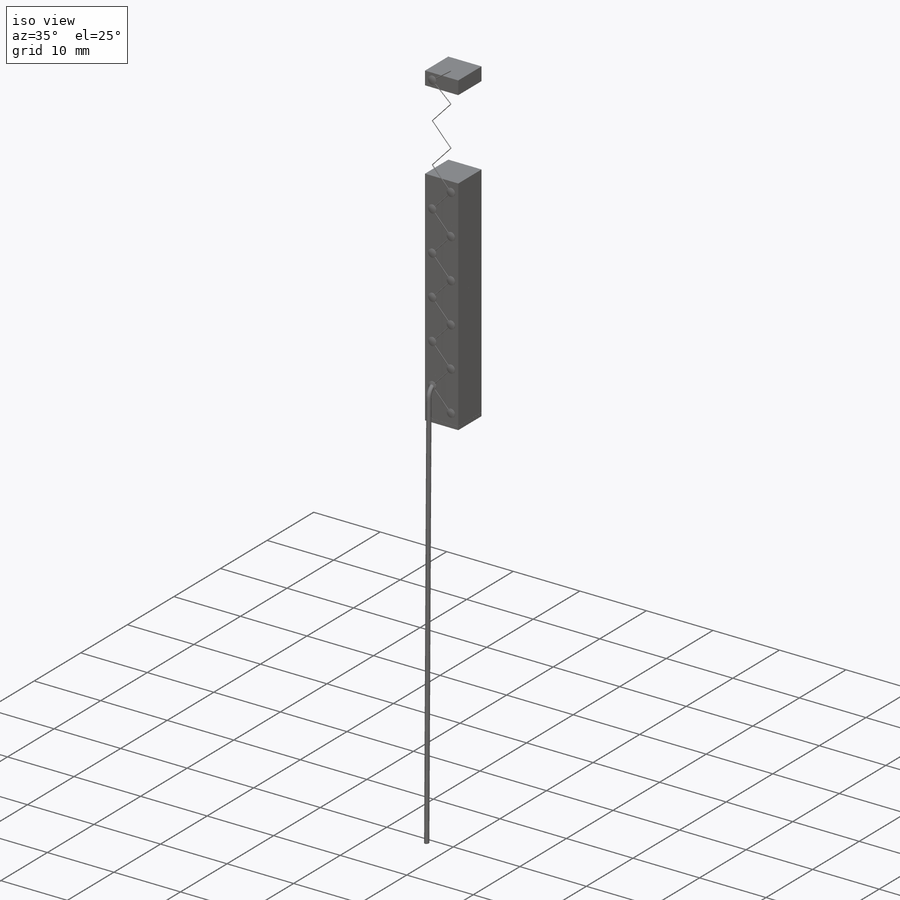
[diagram: iso view]
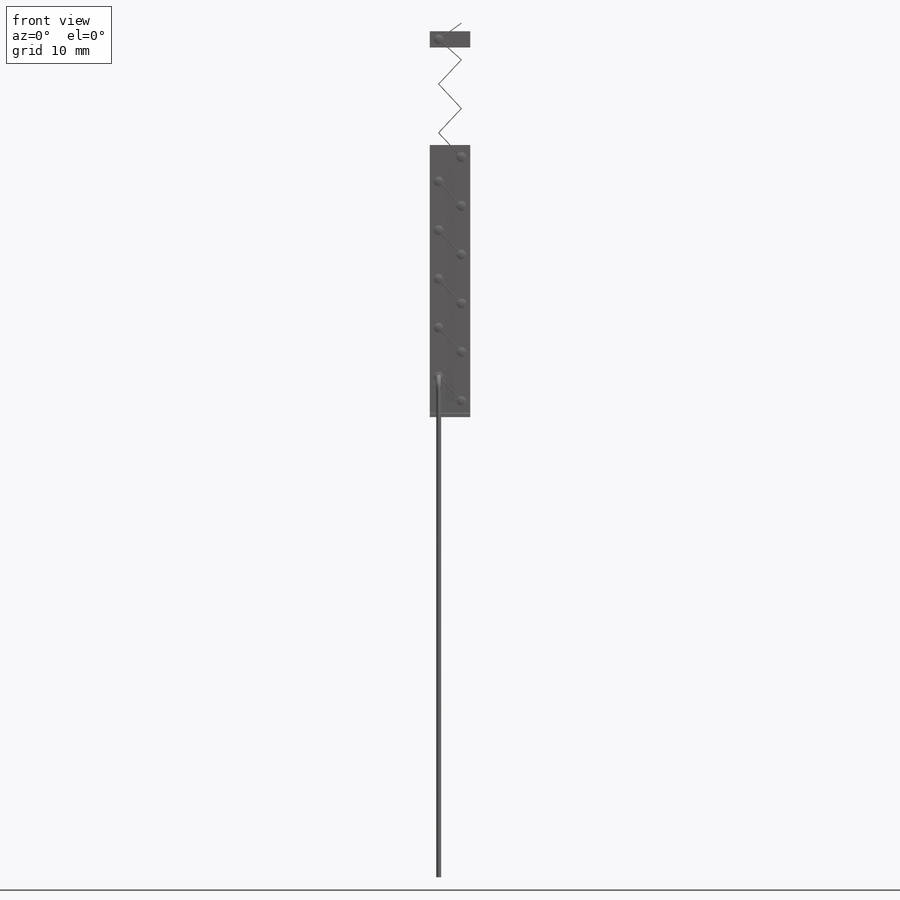
[diagram: front view]
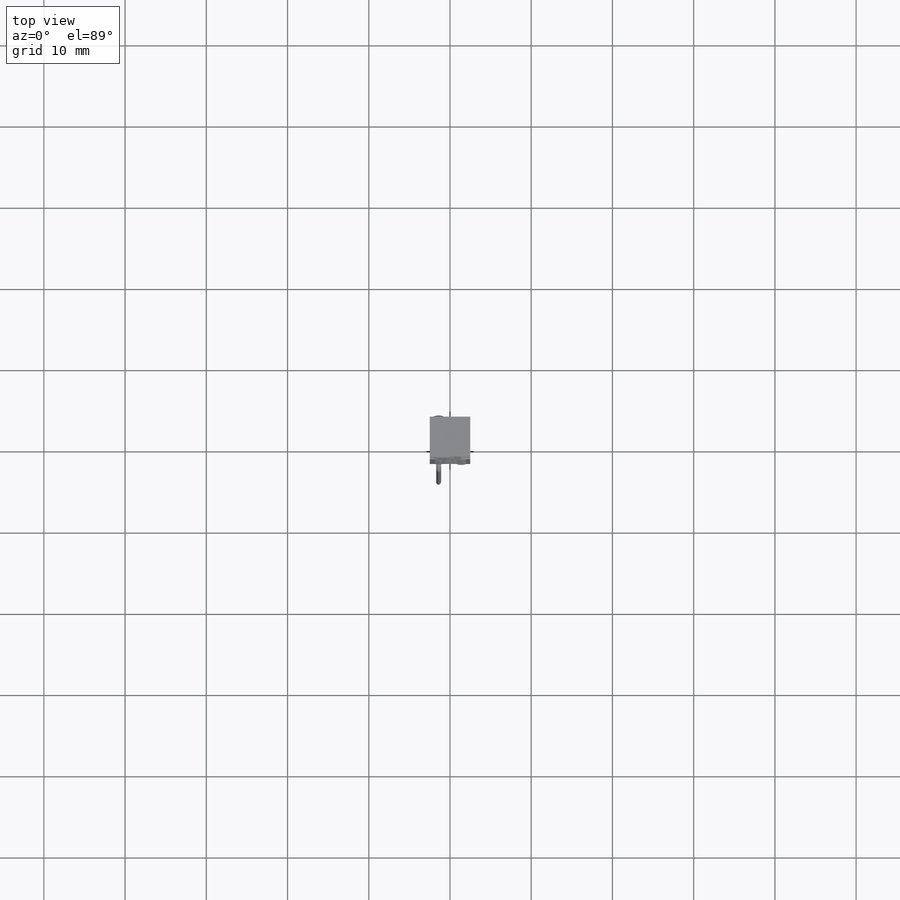
[diagram: top view]
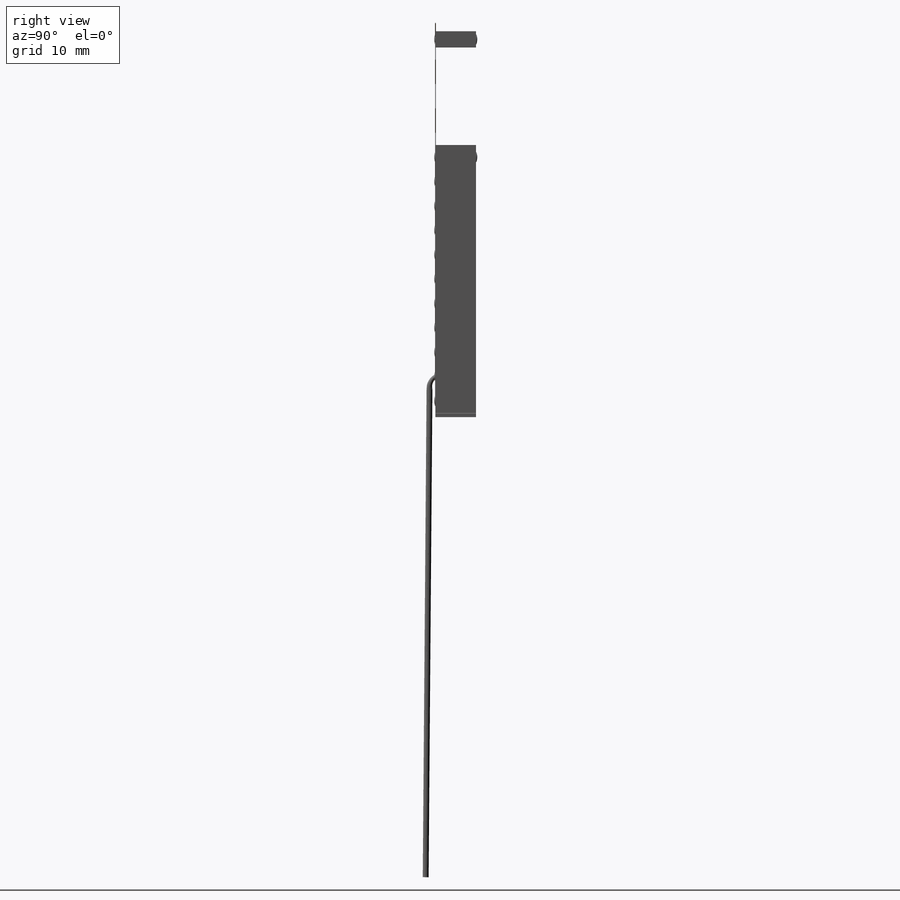
[diagram: right view]
SOLIDWORKS PART (.sldprt)
format: sldprt  version: not decoded by parser v0  size: 3,038,208 bytes
history: native  units: mm
features: dome x17, plane x15, sketch x12, extrude x6, sweep x2, material x1, pattern_linear x1, mirror x1 (+13 scaffold rows collapsed)
feature tree (68):
  scaffold x13  (default folders/planes/origin — collapsed)
  material  "Material <not specified>"
  sketch  "Sketch1"  dims[c1.D1=~27.482152mm c1.D2=~36.551262mm c2.D1=5.0mm c2.D2=110.0mm]
  extrude  "Boss-Extrude1"  Depth=3mm
  plane  "Plane1"  Offset=1.2mm
  pattern_linear  "LPattern3"  Count1=15 Count2=1 Spacing1=3.0001mm Spacing2=2.5mm
  plane  "Plane16"  Offset=0mm
  plane  "Plane17"  Offset=0.01mm
  plane  "Plane25"  Offset=0.0001mm
  sketch  "Sketch2"  dims[c1.D1=5.0mm c2.D1=90.0deg c2.D2=5.0mm]
  extrude  "Boss-Extrude2"  Depth=0.5mm
  sketch  "Sketch22"  dims[D1=5.0mm D2=5.0mm]
  extrude  "Boss-Extrude10"  Depth=2mm
  plane  "Plane26"  Offset=0.0001mm
  plane  "Plane31"  Offset=0.0001mm
  sketch  "Sketch28"  dims[D1=5.0mm]
  extrude  "Boss-Extrude11"  Depth=2mm
  sketch  "Sketch7"  dims[c1.D1=~0.606695mm c1.D3=~0.665262mm c1.D5=1.2mm c1.D6=1.2mm c1.D9=1.2mm c2.D1=1.1mm c2.D2=1.1mm c2.D3=6.0 c2.D4=5.0 c2.D7=3.0 c2.D8=3.0]
  extrude  "Boss-Extrude6"  Depth=0.05mm
  plane  "Plane18"  Offset=0mm
  sketch  "Sketch8"
  dome  "Dome8"
  dome  "Dome9"
  dome  "Dome10"
  plane  "Plane19"
  sketch  "Sketch9"  dims[c1.D1=0.1mm c2.D1=0.1mm]
  plane  "Plane21"  Offset=0mm
  plane  "Plane22"  Offset=0.95mm
  dome  "Dome26"
  dome  "Dome27"
  dome  "Dome29"
  dome  "Dome30"
  dome  "Dome32"
  dome  "Dome33"
  dome  "Dome34"
  dome  "Dome36"
  dome  "Dome37"
  sweep  "Sweep1"
  dome  "Dome38"
  dome  "Dome40"
  dome  "Dome41"
  dome  "Dome42"
  dome  "Dome43"
  plane  "Plane27"  Offset=0.02mm
  sketch  "Sketch23"  dims[D1=5.0mm D2=5.0mm]
  plane  "Plane28"  Offset=0.001mm
  sketch  "Sketch24"  dims[D1=~0.291642mm]
  plane  "Plane29"
  sketch  "Sketch26"  dims[D1=60.0mm]
  plane  "Plane30"
  sweep  "Sweep3"
  mirror  "Mirror11"
  sketch  "Sketch27"
  plane  "Plane32"  Offset=0.0001mm
  sketch  "Sketch29"
  extrude  "Boss-Extrude12"  Depth=0.5mm
decode coverage: 16 of 39 modeling features carry decoded parameters
note: ~ marks probable driven/reference dimensions
note: suppression state not decoded; provenance and decode notes live in map.json
